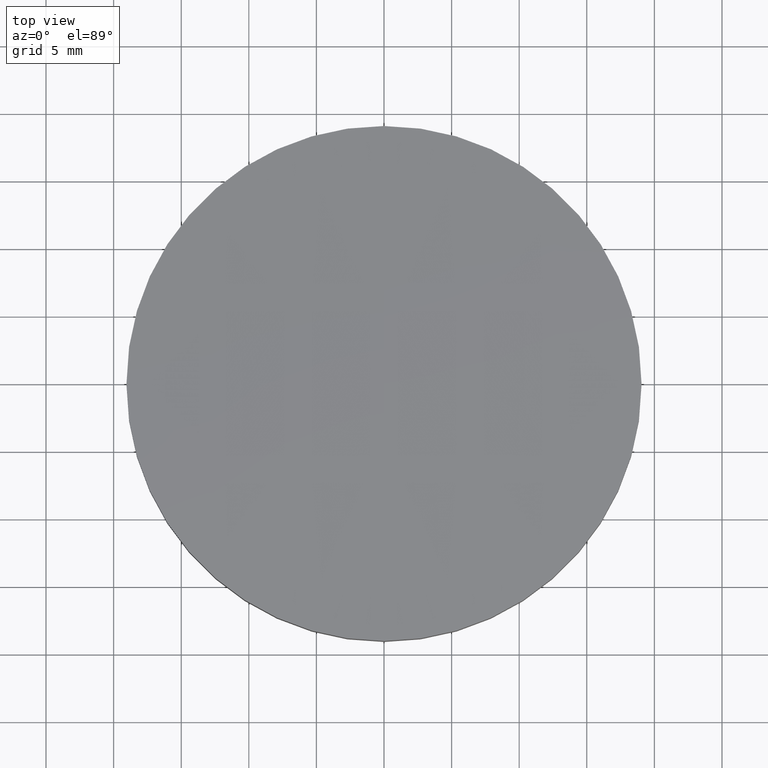
[diagram: clean part render]
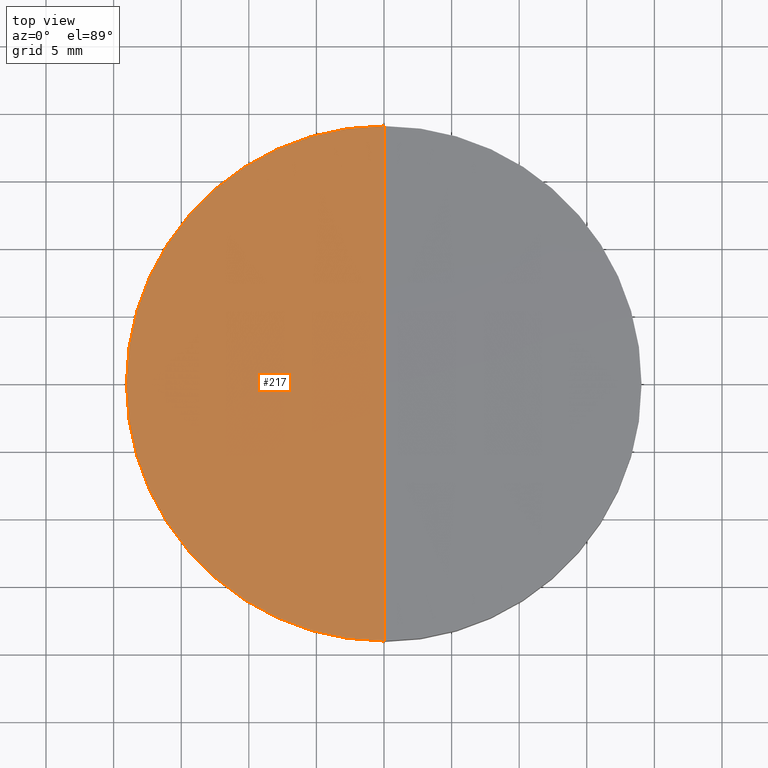
[diagram: same view with one face highlighted and labeled with its STEP entity id]
A machine part, top view. The second image highlights one B-rep face of the part: STEP entity #217.
In plain terms, the highlighted face is a freeform B-spline surface patch.
Its self-contained STEP definition (entity closure, byte-faithful):
#5 = ORIENTED_EDGE ( 'NONE', *, *, #215, .F. ) ;
#6 = CARTESIAN_POINT ( 'NONE',  ( -19.16949876273363200, -6.429686377467061400, 4.743813318143864400 ) ) ;
#7 = CARTESIAN_POINT ( 'NONE',  ( -19.14846515180225600, 19.27847528127603700, 4.222613795022307500 ) ) ;
#10 = DIRECTION ( 'NONE',  ( -2.913971193241879900E-018, -1.358596498406960000E-034, -1.000000000000000000 ) ) ;
#11 = DIRECTION ( 'NONE',  ( 1.000000000000000000, 0.0000000000000000000, 0.0000000000000000000 ) ) ;
#19 = CIRCLE ( 'NONE', #103, 475.2641939237290700 ) ;
#26 = CARTESIAN_POINT ( 'NONE',  ( 0.0000000000000000000, -2.842170943040400100E-014, -470.2641939237290100 ) ) ;
#29 = CARTESIAN_POINT ( 'NONE',  ( -19.14846515180224900, -19.27847528127615800, 4.222613795022307500 ) ) ;
#41 = VERTEX_POINT ( 'NONE', #222 ) ;
#47 = CARTESIAN_POINT ( 'NONE',  ( -12.76867264870308500, -19.27847528127615500, 4.480077716956539100 ) ) ;
#48 = CARTESIAN_POINT ( 'NONE',  ( -12.78269838342772300, 6.429686377466939700, 5.001560051045965200 ) ) ;
#56 = VERTEX_POINT ( 'NONE', #169 ) ;
#58 = EDGE_LOOP ( 'NONE', ( #5, #240, #101 ) ) ;
#63 = CARTESIAN_POINT ( 'NONE',  ( 9.565252569200171800E-014, 19.27847528127604100, 4.608835860866245000 ) ) ;
#69 = CIRCLE ( 'NONE', #142, 19.05000000000000100 ) ;
#77 = FACE_OUTER_BOUND ( 'NONE', #58, .T. ) ;
#85 = CARTESIAN_POINT ( 'NONE',  ( -6.384985517109390300, -19.27847528127615100, 4.608835860866245900 ) ) ;
#95 = VERTEX_POINT ( 'NONE', #151 ) ;
#101 = ORIENTED_EDGE ( 'NONE', *, *, #168, .F. ) ;
#103 = AXIS2_PLACEMENT_3D ( 'NONE', #26, #275, #175 ) ;
#124 = CARTESIAN_POINT ( 'NONE',  ( 9.890517382201487000E-014, 6.429686377466942400, 5.130459629200231600 ) ) ;
#126 = EDGE_CURVE ( 'NONE', #95, #56, #19, .T. ) ;
#142 = AXIS2_PLACEMENT_3D ( 'NONE', #227, #252, #11 ) ;
#149 = AXIS2_PLACEMENT_3D ( 'NONE', #276, #10, #249 ) ;
#151 = CARTESIAN_POINT ( 'NONE',  ( 1.050283841962426500E-013, -19.05000000000017100, 4.618056245691290600 ) ) ;
#168 = EDGE_CURVE ( 'NONE', #41, #56, #69, .T. ) ;
#169 = CARTESIAN_POINT ( 'NONE',  ( 9.571035216865772000E-014, 19.05000000000014300, 4.618056245691290600 ) ) ;
#175 = DIRECTION ( 'NONE',  ( 2.445677697528829700E-016, -1.000000000000000000, 0.0000000000000000000 ) ) ;
#179 = CARTESIAN_POINT ( 'NONE',  ( -6.391999097576797500, 6.429686377466940600, 5.130459629200233400 ) ) ;
#192 = CIRCLE ( 'NONE', #149, 19.05000000000000100 ) ;
#199 = CARTESIAN_POINT ( 'NONE',  ( 1.050823130995572600E-013, -19.27847528127615500, 4.608835860866245000 ) ) ;
#200 = CARTESIAN_POINT ( 'NONE',  ( -6.391999097576794000, -6.429686377467059600, 5.130459629200235100 ) ) ;
#206 = CARTESIAN_POINT ( 'NONE',  ( -12.76867264870309200, 19.27847528127603400, 4.480077716956539100 ) ) ;
#207 = CARTESIAN_POINT ( 'NONE',  ( -19.16949876273363500, 6.429686377466937900, 4.743813318143862600 ) ) ;
#211 =( BOUNDED_SURFACE ( )  B_SPLINE_SURFACE ( 3, 3, ( 
 ( #199, #85, #47, #29 ),
 ( #279, #200, #274, #6 ),
 ( #124, #179, #48, #207 ),
 ( #63, #231, #206, #7 ) ),
 .UNSPECIFIED., .F., .F., .F. ) 
 B_SPLINE_SURFACE_WITH_KNOTS ( ( 4, 4 ),
 ( 4, 4 ),
 ( 0.0000000000000000000, 1.000000000000000000 ),
 ( 0.0000000000000000000, 1.000000000000000000 ),
 .UNSPECIFIED. ) 
 GEOMETRIC_REPRESENTATION_ITEM ( )  RATIONAL_B_SPLINE_SURFACE ( (
 ( 1.000000000000000000, 0.9998644334679308600, 0.9998644334679308600, 1.000000000000000000),
 ( 0.9994513028835543300, 0.9993158107364503700, 0.9993158107364503700, 0.9994513028835543300),
 ( 0.9994513028835543300, 0.9993158107364503700, 0.9993158107364503700, 0.9994513028835543300),
 ( 1.000000000000000000, 0.9998644334679308600, 0.9998644334679308600, 1.000000000000000000) ) ) 
 REPRESENTATION_ITEM ( '' )  SURFACE ( )  );
#215 = EDGE_CURVE ( 'NONE', #95, #41, #192, .T. ) ;
#217 = ADVANCED_FACE ( 'NONE', ( #77 ), #211, .T. ) ;
#222 = CARTESIAN_POINT ( 'NONE',  ( -19.05000000000000400, 1.444773732675583000E-015, 4.618056245691300400 ) ) ;
#227 = CARTESIAN_POINT ( 'NONE',  ( -4.650592793654439200E-015, -8.881784197001250400E-016, 4.618056245691300400 ) ) ;
#231 = CARTESIAN_POINT ( 'NONE',  ( -6.384985517109400100, 19.27847528127603700, 4.608835860866245900 ) ) ;
#240 = ORIENTED_EDGE ( 'NONE', *, *, #126, .T. ) ;
#249 = DIRECTION ( 'NONE',  ( 1.000000000000000000, 0.0000000000000000000, 0.0000000000000000000 ) ) ;
#252 = DIRECTION ( 'NONE',  ( -2.913971193241879900E-018, -1.358596498406960000E-034, -1.000000000000000000 ) ) ;
#274 = CARTESIAN_POINT ( 'NONE',  ( -12.78269838342772000, -6.429686377467060500, 5.001560051045967000 ) ) ;
#275 = DIRECTION ( 'NONE',  ( -1.000000000000000000, -2.445677697528830200E-016, 2.113563270613760000E-016 ) ) ;
#276 = CARTESIAN_POINT ( 'NONE',  ( -4.650592793654439200E-015, -8.881784197001250400E-016, 4.618056245691300400 ) ) ;
#279 = CARTESIAN_POINT ( 'NONE',  ( 1.020501619371100800E-013, -6.429686377467057000, 5.130459629200233400 ) ) ;